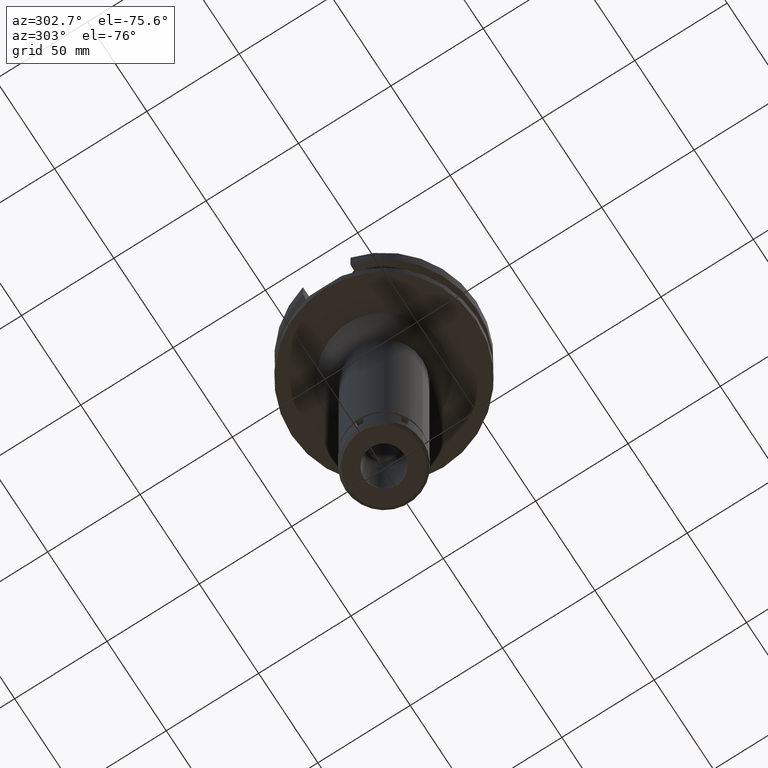
[diagram: clean part render]
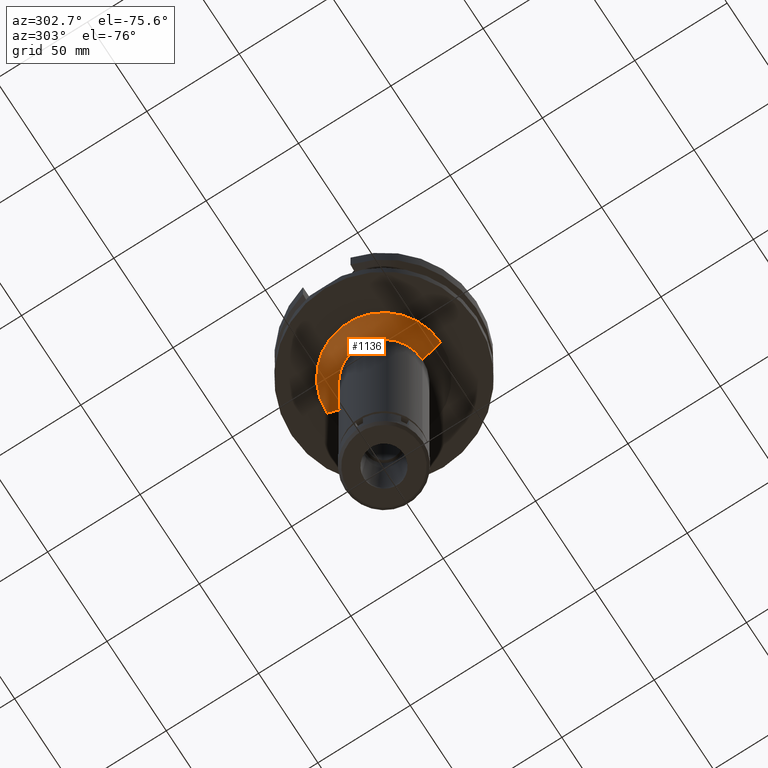
[diagram: same view with one face highlighted and labeled with its STEP entity id]
A machine part, auxiliary view. The second image highlights one B-rep face of the part: STEP entity #1136.
In plain terms, the highlighted conical surface has half-angle 45 deg.
Its self-contained STEP definition (entity closure, byte-faithful):
#171 = CIRCLE ( 'NONE', #768, 20.75000000000000000 ) ;
#229 = EDGE_CURVE ( 'NONE', #2019, #3239, #171, .T. ) ;
#285 = FACE_OUTER_BOUND ( 'NONE', #2053, .T. ) ;
#360 = ORIENTED_EDGE ( 'NONE', *, *, #2558, .T. ) ;
#517 = ORIENTED_EDGE ( 'NONE', *, *, #2831, .T. ) ;
#588 = DIRECTION ( 'NONE',  ( 0.0000000000000000000, -1.000000000000000000, 0.0000000000000000000 ) ) ;
#743 = CARTESIAN_POINT ( 'NONE',  ( 0.0000000000000000000, -30.75000000000000000, -38.00000000000000000 ) ) ;
#768 = AXIS2_PLACEMENT_3D ( 'NONE', #3020, #3542, #2192 ) ;
#1136 = ADVANCED_FACE ( 'NONE', ( #285 ), #2063, .T. ) ;
#1350 = DIRECTION ( 'NONE',  ( 0.0000000000000000000, 0.7071067811865969777, -0.7071067811864980568 ) ) ;
#1637 = CARTESIAN_POINT ( 'NONE',  ( 0.0000000000000000000, -30.75000000000000000, -38.00000000000000000 ) ) ;
#1655 = CARTESIAN_POINT ( 'NONE',  ( 0.0000000000000000000, 30.75000000000000000, -38.00000000000000000 ) ) ;
#1952 = DIRECTION ( 'NONE',  ( 0.0000000000000000000, 1.000000000000000000, 0.0000000000000000000 ) ) ;
#2000 = CARTESIAN_POINT ( 'NONE',  ( 0.0000000000000000000, 0.0000000000000000000, -43.00000000000000000 ) ) ;
#2019 = VERTEX_POINT ( 'NONE', #3129 ) ;
#2023 = DIRECTION ( 'NONE',  ( 0.0000000000000000000, -0.7071067811865474617, -0.7071067811865474617 ) ) ;
#2051 = LINE ( 'NONE', #3232, #2648 ) ;
#2053 = EDGE_LOOP ( 'NONE', ( #2872, #3076, #360, #517 ) ) ;
#2063 = CONICAL_SURFACE ( 'NONE', #3269, 25.75000000000000000, 0.7853981633972997312 ) ;
#2192 = DIRECTION ( 'NONE',  ( 0.0000000000000000000, -1.000000000000000000, 0.0000000000000000000 ) ) ;
#2236 = DIRECTION ( 'NONE',  ( 0.0000000000000000000, 0.0000000000000000000, -1.000000000000000000 ) ) ;
#2558 = EDGE_CURVE ( 'NONE', #3459, #3426, #3637, .T. ) ;
#2648 = VECTOR ( 'NONE', #2023, 1000.000000000000114 ) ;
#2714 = LINE ( 'NONE', #743, #3553 ) ;
#2831 = EDGE_CURVE ( 'NONE', #3426, #3239, #2051, .T. ) ;
#2866 = DIRECTION ( 'NONE',  ( 0.0000000000000000000, 0.0000000000000000000, 1.000000000000000000 ) ) ;
#2872 = ORIENTED_EDGE ( 'NONE', *, *, #229, .F. ) ;
#2895 = EDGE_CURVE ( 'NONE', #3459, #2019, #2714, .T. ) ;
#3020 = CARTESIAN_POINT ( 'NONE',  ( 0.0000000000000000000, 0.0000000000000000000, -48.00000000000000000 ) ) ;
#3076 = ORIENTED_EDGE ( 'NONE', *, *, #2895, .F. ) ;
#3098 = CARTESIAN_POINT ( 'NONE',  ( 0.0000000000000000000, 0.0000000000000000000, -38.00000000000000000 ) ) ;
#3129 = CARTESIAN_POINT ( 'NONE',  ( 0.0000000000000000000, -20.75000000000000000, -48.00000000000000000 ) ) ;
#3232 = CARTESIAN_POINT ( 'NONE',  ( 0.0000000000000000000, 30.75000000000000000, -38.00000000000000000 ) ) ;
#3239 = VERTEX_POINT ( 'NONE', #3482 ) ;
#3269 = AXIS2_PLACEMENT_3D ( 'NONE', #2000, #2866, #1952 ) ;
#3426 = VERTEX_POINT ( 'NONE', #1655 ) ;
#3459 = VERTEX_POINT ( 'NONE', #1637 ) ;
#3482 = CARTESIAN_POINT ( 'NONE',  ( 0.0000000000000000000, 20.75000000000000000, -48.00000000000000000 ) ) ;
#3510 = AXIS2_PLACEMENT_3D ( 'NONE', #3098, #2236, #588 ) ;
#3542 = DIRECTION ( 'NONE',  ( 0.0000000000000000000, 0.0000000000000000000, -1.000000000000000000 ) ) ;
#3553 = VECTOR ( 'NONE', #1350, 1000.000000000000000 ) ;
#3637 = CIRCLE ( 'NONE', #3510, 30.75000000000000000 ) ;